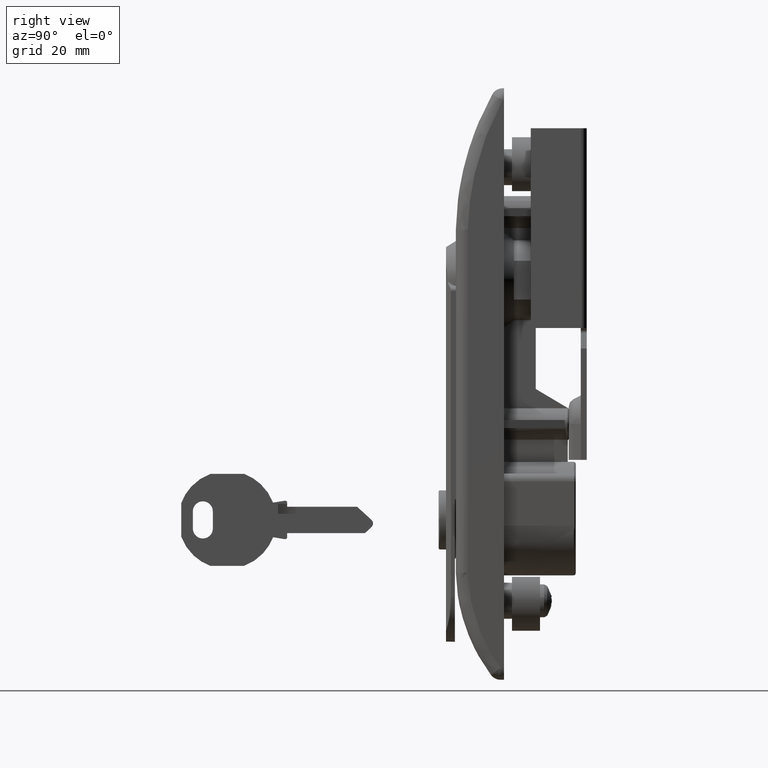
[diagram: clean part render]
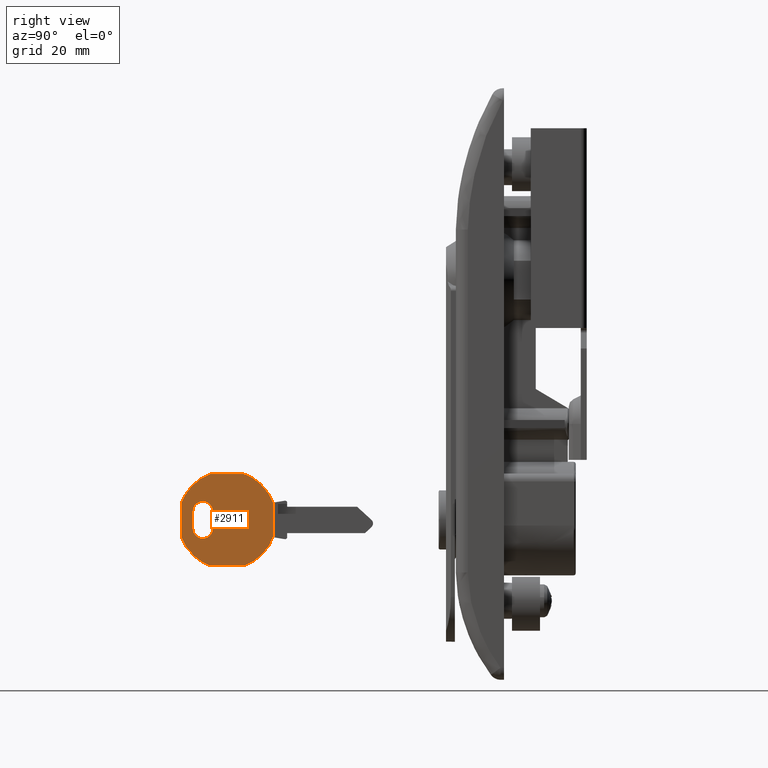
[diagram: same view with one face highlighted and labeled with its STEP entity id]
A machine part, right view. The second image highlights one B-rep face of the part: STEP entity #2911.
In plain terms, the highlighted face is a freeform B-spline surface patch.
Its self-contained STEP definition (entity closure, byte-faithful):
#2766=CARTESIAN_POINT('',(2.0,-81.906555750266406,-75.601150044643546));
#2767=CARTESIAN_POINT('',(2.0,-56.608855901052443,-75.601150044643546));
#2768=CARTESIAN_POINT('',(2.0,-81.906555750266406,-100.898850572395010));
#2769=CARTESIAN_POINT('',(2.0,-56.608855901052443,-100.898850572395010));
#2770=B_SPLINE_SURFACE_WITH_KNOTS('',1,1,((#2766,#2768),(#2767,#2769)),.UNSPECIFIED.,.F.,.F.,.U.,(2,2),(2,2),(0.0,25.297699849213959),(0.0,25.297700527751491),.UNSPECIFIED.);
#2771=CARTESIAN_POINT('',(2.0,-65.008281307169099,-76.750000000065100));
#2772=VERTEX_POINT('',#2771);
#2773=CARTESIAN_POINT('',(2.0,-73.507128287789399,-76.750000000065100));
#2774=VERTEX_POINT('',#2773);
#2775=CARTESIAN_POINT('',(2.0,-65.008281307169099,-76.750000000065100));
#2776=CARTESIAN_POINT('',(2.0,-73.507128287789399,-76.750000000065100));
#2777=QUASI_UNIFORM_CURVE('',1,(#2775,#2776),.UNSPECIFIED.,.F.,.U.);
#2778=EDGE_CURVE('',#2772,#2774,#2777,.T.);
#2779=ORIENTED_EDGE('',*,*,#2778,.T.);
#2780=CARTESIAN_POINT('',(2.0,-80.757704797479207,-84.000576509754893));
#2781=VERTEX_POINT('',#2780);
#2782=CARTESIAN_POINT('',(2.0,-73.507128287789413,-76.750000000065057));
#2783=CARTESIAN_POINT('',(2.000000000000000,-78.801393815205941,-78.706310982338351));
#2784=CARTESIAN_POINT('',(2.0,-80.757704797479292,-84.000576509754865));
#2792=(BOUNDED_CURVE()B_SPLINE_CURVE(2,(#2782,#2783,#2784),.UNSPECIFIED.,.F.,.U.)CURVE()GEOMETRIC_REPRESENTATION_ITEM()QUASI_UNIFORM_CURVE()RATIONAL_B_SPLINE_CURVE((1.0,0.908362491825206,1.0))REPRESENTATION_ITEM(''));
#2793=EDGE_CURVE('',#2774,#2781,#2792,.T.);
#2794=ORIENTED_EDGE('',*,*,#2793,.T.);
#2795=CARTESIAN_POINT('',(2.0,-80.757704797479306,-92.499423490375193));
#2796=VERTEX_POINT('',#2795);
#2797=CARTESIAN_POINT('',(2.0,-80.757704797479207,-84.000576509754893));
#2798=CARTESIAN_POINT('',(2.0,-80.757704797479306,-92.499423490375193));
#2799=QUASI_UNIFORM_CURVE('',1,(#2797,#2798),.UNSPECIFIED.,.F.,.U.);
#2800=EDGE_CURVE('',#2781,#2796,#2799,.T.);
#2801=ORIENTED_EDGE('',*,*,#2800,.T.);
#2802=CARTESIAN_POINT('',(2.0,-73.507128287789499,-99.750000000065015));
#2803=VERTEX_POINT('',#2802);
#2804=CARTESIAN_POINT('',(2.0,-80.757704797479335,-92.499423490375207));
#2805=CARTESIAN_POINT('',(2.000000000000000,-78.801393815206055,-97.793689017791763));
#2806=CARTESIAN_POINT('',(2.0,-73.507128287789513,-99.750000000065086));
#2814=(BOUNDED_CURVE()B_SPLINE_CURVE(2,(#2804,#2805,#2806),.UNSPECIFIED.,.F.,.U.)CURVE()GEOMETRIC_REPRESENTATION_ITEM()QUASI_UNIFORM_CURVE()RATIONAL_B_SPLINE_CURVE((1.0,0.908362491825206,1.0))REPRESENTATION_ITEM(''));
#2815=EDGE_CURVE('',#2796,#2803,#2814,.T.);
#2816=ORIENTED_EDGE('',*,*,#2815,.T.);
#2817=CARTESIAN_POINT('',(2.0,-65.008281307169099,-99.750000000065413));
#2818=VERTEX_POINT('',#2817);
#2819=CARTESIAN_POINT('',(2.0,-73.507128287789499,-99.750000000065015));
#2820=CARTESIAN_POINT('',(2.0,-65.008281307169099,-99.750000000065413));
#2821=QUASI_UNIFORM_CURVE('',1,(#2819,#2820),.UNSPECIFIED.,.F.,.U.);
#2822=EDGE_CURVE('',#2803,#2818,#2821,.T.);
#2823=ORIENTED_EDGE('',*,*,#2822,.T.);
#2824=CARTESIAN_POINT('',(2.0,-57.757704797479313,-92.499423490375307));
#2825=VERTEX_POINT('',#2824);
#2826=CARTESIAN_POINT('',(2.0,-65.008281307169213,-99.750000000065114));
#2827=CARTESIAN_POINT('',(2.000000000000000,-59.714015779752657,-97.793689017791863));
#2828=CARTESIAN_POINT('',(2.0,-57.757704797479320,-92.499423490375307));
#2836=(BOUNDED_CURVE()B_SPLINE_CURVE(2,(#2826,#2827,#2828),.UNSPECIFIED.,.F.,.U.)CURVE()GEOMETRIC_REPRESENTATION_ITEM()QUASI_UNIFORM_CURVE()RATIONAL_B_SPLINE_CURVE((1.0,0.908362491825206,1.0))REPRESENTATION_ITEM(''));
#2837=EDGE_CURVE('',#2818,#2825,#2836,.T.);
#2838=ORIENTED_EDGE('',*,*,#2837,.T.);
#2839=CARTESIAN_POINT('',(2.0,-57.757704797479313,-84.000576509754893));
#2840=VERTEX_POINT('',#2839);
#2841=CARTESIAN_POINT('',(2.0,-57.757704797479313,-92.499423490375307));
#2842=CARTESIAN_POINT('',(2.0,-57.757704797479313,-84.000576509754893));
#2843=QUASI_UNIFORM_CURVE('',1,(#2841,#2842),.UNSPECIFIED.,.F.,.U.);
#2844=EDGE_CURVE('',#2825,#2840,#2843,.T.);
#2845=ORIENTED_EDGE('',*,*,#2844,.T.);
#2846=CARTESIAN_POINT('',(2.0,-57.757704797479313,-84.000576509754893));
#2847=CARTESIAN_POINT('',(2.000000000000000,-59.714015779752621,-78.706310982338422));
#2848=CARTESIAN_POINT('',(2.0,-65.008281307169099,-76.750000000065100));
#2856=(BOUNDED_CURVE()B_SPLINE_CURVE(2,(#2846,#2847,#2848),.UNSPECIFIED.,.F.,.U.)CURVE()GEOMETRIC_REPRESENTATION_ITEM()QUASI_UNIFORM_CURVE()RATIONAL_B_SPLINE_CURVE((1.0,0.908362491825208,1.0))REPRESENTATION_ITEM(''));
#2857=EDGE_CURVE('',#2840,#2772,#2856,.T.);
#2858=ORIENTED_EDGE('',*,*,#2857,.T.);
#2859=EDGE_LOOP('',(#2779,#2794,#2801,#2816,#2823,#2838,#2845,#2858));
#2860=FACE_OUTER_BOUND('',#2859,.T.);
#2861=CARTESIAN_POINT('',(2.0,-72.857704797479300,-90.410000000065295));
#2862=VERTEX_POINT('',#2861);
#2863=CARTESIAN_POINT('',(2.0,-72.857704797479300,-86.110000000065412));
#2864=VERTEX_POINT('',#2863);
#2865=CARTESIAN_POINT('',(2.0,-72.857704797479300,-90.410000000065295));
#2866=CARTESIAN_POINT('',(2.0,-72.857704797479300,-86.110000000065412));
#2867=QUASI_UNIFORM_CURVE('',1,(#2865,#2866),.UNSPECIFIED.,.F.,.U.);
#2868=EDGE_CURVE('',#2862,#2864,#2867,.T.);
#2869=ORIENTED_EDGE('',*,*,#2868,.F.);
#2870=CARTESIAN_POINT('',(2.0,-77.857704797479300,-90.410000000065295));
#2871=VERTEX_POINT('',#2870);
#2872=CARTESIAN_POINT('',(2.0,-77.857704797479300,-90.410000000065295));
#2873=CARTESIAN_POINT('',(2.000000000000000,-77.857704797479300,-92.910000000065295));
#2874=CARTESIAN_POINT('',(2.0,-75.357704797479300,-92.910000000065295));
#2875=CARTESIAN_POINT('',(2.000000000000000,-72.857704797479315,-92.910000000065295));
#2876=CARTESIAN_POINT('',(2.0,-72.857704797479300,-90.410000000065295));
#2884=(BOUNDED_CURVE()B_SPLINE_CURVE(2,(#2872,#2873,#2874,#2875,#2876),.UNSPECIFIED.,.F.,.U.)B_SPLINE_CURVE_WITH_KNOTS((3,2,3),(0.0,0.500000000000000,1.0),.UNSPECIFIED.)CURVE()GEOMETRIC_REPRESENTATION_ITEM()RATIONAL_B_SPLINE_CURVE((1.0,0.707106781186548,1.0,0.707106781186548,1.0))REPRESENTATION_ITEM(''));
#2885=EDGE_CURVE('',#2871,#2862,#2884,.T.);
#2886=ORIENTED_EDGE('',*,*,#2885,.F.);
#2887=CARTESIAN_POINT('',(2.0,-77.857704797479300,-86.110000000065412));
#2888=VERTEX_POINT('',#2887);
#2889=CARTESIAN_POINT('',(2.0,-77.857704797479300,-86.110000000065412));
#2890=CARTESIAN_POINT('',(2.0,-77.857704797479300,-90.410000000065295));
#2891=QUASI_UNIFORM_CURVE('',1,(#2889,#2890),.UNSPECIFIED.,.F.,.U.);
#2892=EDGE_CURVE('',#2888,#2871,#2891,.T.);
#2893=ORIENTED_EDGE('',*,*,#2892,.F.);
#2894=CARTESIAN_POINT('',(2.0,-72.857704797479300,-86.110000000065412));
#2895=CARTESIAN_POINT('',(2.000000000000000,-72.857704797479315,-83.610000000065412));
#2896=CARTESIAN_POINT('',(2.0,-75.357704797479300,-83.610000000065412));
#2897=CARTESIAN_POINT('',(2.000000000000000,-77.857704797479300,-83.610000000065412));
#2898=CARTESIAN_POINT('',(2.0,-77.857704797479300,-86.110000000065412));
#2906=(BOUNDED_CURVE()B_SPLINE_CURVE(2,(#2894,#2895,#2896,#2897,#2898),.UNSPECIFIED.,.F.,.U.)B_SPLINE_CURVE_WITH_KNOTS((3,2,3),(0.0,0.500000000000000,1.0),.UNSPECIFIED.)CURVE()GEOMETRIC_REPRESENTATION_ITEM()RATIONAL_B_SPLINE_CURVE((1.0,0.707106781186548,1.0,0.707106781186548,1.0))REPRESENTATION_ITEM(''));
#2907=EDGE_CURVE('',#2864,#2888,#2906,.T.);
#2908=ORIENTED_EDGE('',*,*,#2907,.F.);
#2909=EDGE_LOOP('',(#2869,#2886,#2893,#2908));
#2910=FACE_BOUND('',#2909,.T.);
#2911=ADVANCED_FACE('',(#2860,#2910),#2770,.F.);